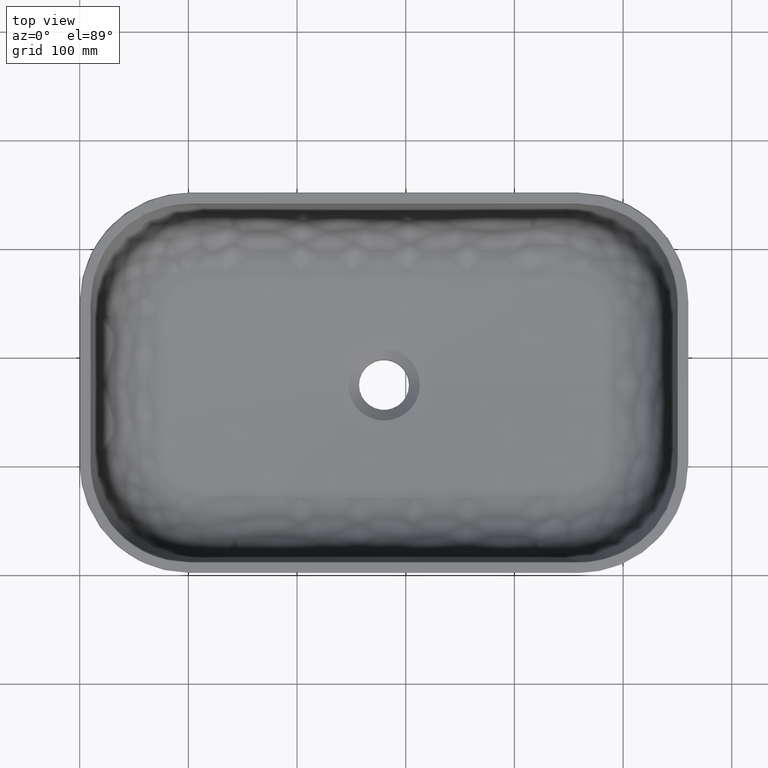
[diagram: clean part render]
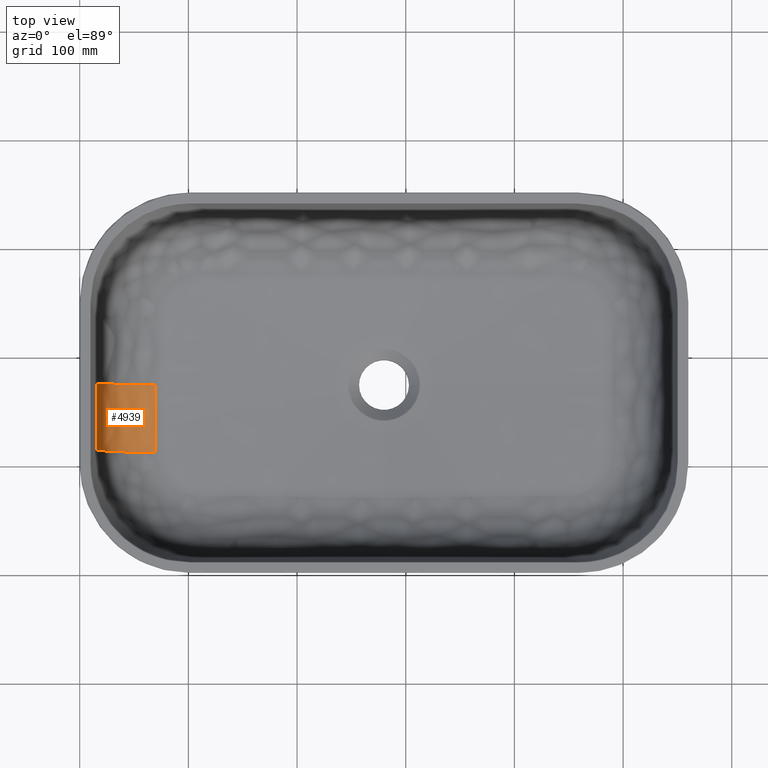
[diagram: same view with one face highlighted and labeled with its STEP entity id]
A machine part, top view. The second image highlights one B-rep face of the part: STEP entity #4939.
In plain terms, the highlighted face is a freeform B-spline surface patch.
Its self-contained STEP definition (entity closure, byte-faithful):
#25 = CARTESIAN_POINT ( 'NONE',  ( 15.23718647984850172, 113.9064782331549992, 82.73548189080469228 ) ) ;
#350 = EDGE_LOOP ( 'NONE', ( #2409, #2993, #2813, #4059 ) ) ;
#418 = CARTESIAN_POINT ( 'NONE',  ( 15.26199971537529976, 120.9015098490660023, 82.55892654602440928 ) ) ;
#508 = CARTESIAN_POINT ( 'NONE',  ( 15.34793004136510142, 175.0000000000000000, 81.94750050624180915 ) ) ;
#526 = EDGE_CURVE ( 'NONE', #4944, #2497, #659, .T. ) ;
#558 = CARTESIAN_POINT ( 'NONE',  ( 15.23718648091690042, 113.9064785343490058, 82.73548188320239660 ) ) ;
#574 = CARTESIAN_POINT ( 'NONE',  ( 69.64107231024848943, 112.4153381713429951, 31.31417020388090222 ) ) ;
#646 = CARTESIAN_POINT ( 'NONE',  ( 69.54779664741640488, 154.1466475399097078, 30.61382989231121954 ) ) ;
#659 = B_SPLINE_CURVE_WITH_KNOTS ( 'NONE', 3,
 ( #3133, #4762, #3933, #3908, #646, #1890, #4330, #957, #4731, #1839, #2646, #1814, #3569, #4434, #2330, #574 ),
 .UNSPECIFIED., .F., .F.,
 ( 4, 2, 2, 1, 1, 1, 1, 2, 2, 4 ),
 ( 0.0000000000000000000, 0.2499999999999771294, 0.3749999999999656941, 0.4374999999999593103, 0.4687499999999561462, 0.4843749999999545364, 0.4921874999999537592, 0.4960937499999533151, 0.4999999999999529265, 1.000000000000000000 ),
 .UNSPECIFIED. ) ;
#807 = CARTESIAN_POINT ( 'NONE',  ( 15.34793004136510142, 174.9999999999690203, 81.94750050624180915 ) ) ;
#957 = CARTESIAN_POINT ( 'NONE',  ( 69.55954991188299630, 145.9745424878787503, 30.69817718669120055 ) ) ;
#1090 = CARTESIAN_POINT ( 'NONE',  ( 15.23718648091690042, 113.9064785343490058, 82.73548188320239660 ) ) ;
#1154 = CARTESIAN_POINT ( 'NONE',  ( 15.34793004136510142, 175.0000000000000000, 81.94750050624180915 ) ) ;
#1216 = CARTESIAN_POINT ( 'NONE',  ( 69.53466960099980554, 175.0000000000000000, 30.52620467834089979 ) ) ;
#1286 = CARTESIAN_POINT ( 'NONE',  ( 15.23718648091690042, 113.9064785343490058, 82.73548188320239660 ) ) ;
#1296 =( BOUNDED_SURFACE ( )  B_SPLINE_SURFACE ( 2, 3, ( 
 ( #1216, #2159, #1628, #2908, #5079 ),
 ( #2958, #2543, #2490, #2131, #4226 ),
 ( #807, #4968, #3810, #418, #25 ) ),
 .UNSPECIFIED., .F., .F., .T. ) 
 B_SPLINE_SURFACE_WITH_KNOTS ( ( 3, 3 ),
 ( 4, 1, 4 ),
 ( 0.0000000000000000000, 83.17495397387089895 ),
 ( 3.818127161035650307E-11, 40.10844711807730079, 61.10039646845979888 ),
 .UNSPECIFIED. ) 
 GEOMETRIC_REPRESENTATION_ITEM ( )  RATIONAL_B_SPLINE_SURFACE ( (
 ( 1.000000000000000000, 1.000000000000000000, 1.000000000000000000, 1.000000000000000000, 1.000000000000000000),
 ( 0.7826081568524140275, 0.7826098197985700278, 0.7823330315936759538, 0.7817085713891590570, 0.7814623352291270031),
 ( 1.000000000000000000, 1.000000000000000000, 1.000000000000000000, 1.000000000000000000, 1.000000000000000000) ) ) 
 REPRESENTATION_ITEM ( '' )  SURFACE ( )  );
#1628 = CARTESIAN_POINT ( 'NONE',  ( 69.56185005931619969, 140.4045605193025779, 30.70423361308154853 ) ) ;
#1713 = CARTESIAN_POINT ( 'NONE',  ( 69.53466960099980554, 175.0000000000000000, 30.52620467834089979 ) ) ;
#1814 = CARTESIAN_POINT ( 'NONE',  ( 69.56321762270486886, 143.8447838729085504, 30.72438435458758477 ) ) ;
#1839 = CARTESIAN_POINT ( 'NONE',  ( 69.56249338865789866, 144.2545177104757954, 30.71922278363149417 ) ) ;
#1890 = CARTESIAN_POINT ( 'NONE',  ( 69.55303997811145678, 150.2270862035633172, 30.65137594923625031 ) ) ;
#2131 = CARTESIAN_POINT ( 'NONE',  ( 21.92218710939781445, 119.8077417239460232, 35.16923081739432178 ) ) ;
#2159 = CARTESIAN_POINT ( 'NONE',  ( 69.53439984613959268, 161.2898180420249901, 30.52585119676200165 ) ) ;
#2224 = CARTESIAN_POINT ( 'NONE',  ( 15.34793004136510142, 175.0000000000000000, 81.94750050624180915 ) ) ;
#2330 = CARTESIAN_POINT ( 'NONE',  ( 69.60894220374633790, 122.9536600851867689, 31.05391891012630978 ) ) ;
#2409 = ORIENTED_EDGE ( 'NONE', *, *, #2717, .F. ) ;
#2490 = CARTESIAN_POINT ( 'NONE',  ( 21.97057642128611121, 140.5507490226708853, 34.82492297292363759 ) ) ;
#2497 = VERTEX_POINT ( 'NONE', #3731 ) ;
#2543 = CARTESIAN_POINT ( 'NONE',  ( 21.99014761362772674, 161.3523539951098371, 34.68566670305802546 ) ) ;
#2624 = EDGE_CURVE ( 'NONE', #3204, #5424, #3622, .T. ) ;
#2629 = CARTESIAN_POINT ( 'NONE',  ( 15.29962234468299975, 134.8935453471989945, 82.29122762857220152 ) ) ;
#2646 = CARTESIAN_POINT ( 'NONE',  ( 69.56292715843717644, 144.0086841709576220, 30.72231483816595698 ) ) ;
#2717 = EDGE_CURVE ( 'NONE', #3204, #4944, #4367, .T. ) ;
#2813 = ORIENTED_EDGE ( 'NONE', *, *, #4200, .T. ) ;
#2908 = CARTESIAN_POINT ( 'NONE',  ( 69.61927393739691183, 119.5671612365810006, 31.13763071810659966 ) ) ;
#2958 = CARTESIAN_POINT ( 'NONE',  ( 21.99012702962548715, 174.9999999999999716, 34.68581316586192997 ) ) ;
#2993 = ORIENTED_EDGE ( 'NONE', *, *, #2624, .T. ) ;
#3133 = CARTESIAN_POINT ( 'NONE',  ( 69.53466960099980554, 175.0000000000000000, 30.52620467834089979 ) ) ;
#3204 = VERTEX_POINT ( 'NONE', #1154 ) ;
#3374 = FACE_OUTER_BOUND ( 'NONE', #350, .T. ) ;
#3515 = CARTESIAN_POINT ( 'NONE',  ( 21.99012702962548005, 175.0000000000160583, 34.68581316586192997 ) ) ;
#3569 = CARTESIAN_POINT ( 'NONE',  ( 69.56336561520504347, 143.7616432197366407, 30.72543826281995649 ) ) ;
#3622 = B_SPLINE_CURVE_WITH_KNOTS ( 'NONE', 3,
 ( #508, #5219, #4717, #2629, #5141, #3945, #558 ),
 .UNSPECIFIED., .F., .F.,
 ( 4, 3, 4 ),
 ( 3.822009375653579546E-11, 40.10844711807740026, 61.10039646845979888 ),
 .UNSPECIFIED. ) ;
#3731 = CARTESIAN_POINT ( 'NONE',  ( 69.64107231024848943, 112.4153381713429951, 31.31417020388090222 ) ) ;
#3810 = CARTESIAN_POINT ( 'NONE',  ( 15.32290970627104976, 141.2637517807885956, 82.12552944101389585 ) ) ;
#3908 = CARTESIAN_POINT ( 'NONE',  ( 69.54483859854069294, 156.7557983291173400, 30.59297031447094994 ) ) ;
#3933 = CARTESIAN_POINT ( 'NONE',  ( 69.53751103518034427, 164.5775532407388653, 30.54290496127937615 ) ) ;
#3945 = CARTESIAN_POINT ( 'NONE',  ( 15.26199971632139984, 120.9015101157719982, 82.55892653929269898 ) ) ;
#4059 = ORIENTED_EDGE ( 'NONE', *, *, #526, .F. ) ;
#4200 = EDGE_CURVE ( 'NONE', #5424, #2497, #5001, .T. ) ;
#4226 = CARTESIAN_POINT ( 'NONE',  ( 21.90231557080181091, 112.6856775350949817, 35.31060931452370255 ) ) ;
#4322 = CARTESIAN_POINT ( 'NONE',  ( 69.53466960099980554, 175.0000000000000000, 30.52620467834089979 ) ) ;
#4330 = CARTESIAN_POINT ( 'NONE',  ( 69.55586554423659607, 148.2658476592948773, 30.67171315023989919 ) ) ;
#4367 =( BOUNDED_CURVE ( )  B_SPLINE_CURVE ( 2, ( #2224, #3515, #4322 ),
 .UNSPECIFIED., .F., .T. ) 
 B_SPLINE_CURVE_WITH_KNOTS ( ( 3, 3 ),
 ( 0.0000000000000000000, 83.17495397387089895 ),
 .UNSPECIFIED. ) 
 CURVE ( )  GEOMETRIC_REPRESENTATION_ITEM ( )  RATIONAL_B_SPLINE_CURVE ( ( 1.000000000000000000, 0.7826081568524140275, 1.000000000000000000 ) ) 
 REPRESENTATION_ITEM ( '' )  );
#4434 = CARTESIAN_POINT ( 'NONE',  ( 69.58199363354316347, 133.3414604011528297, 30.85802811187333816 ) ) ;
#4580 = CARTESIAN_POINT ( 'NONE',  ( 21.90231557121954964, 112.6856776848168664, 35.31060931155160176 ) ) ;
#4603 = CARTESIAN_POINT ( 'NONE',  ( 69.64107231024848943, 112.4153381713429951, 31.31417020388090222 ) ) ;
#4717 = CARTESIAN_POINT ( 'NONE',  ( 15.33152288256140139, 148.2610558310919942, 82.06424350722409145 ) ) ;
#4731 = CARTESIAN_POINT ( 'NONE',  ( 69.56149464446876607, 144.8280121802084750, 30.71209353040359247 ) ) ;
#4762 = CARTESIAN_POINT ( 'NONE',  ( 69.53457944170246208, 169.7844422864853016, 30.52621256625731760 ) ) ;
#4939 = ADVANCED_FACE ( 'NONE', ( #3374 ), #1296, .T. ) ;
#4944 = VERTEX_POINT ( 'NONE', #1713 ) ;
#4968 = CARTESIAN_POINT ( 'NONE',  ( 15.34797971996249899, 161.6305141282360012, 81.94714702465390133 ) ) ;
#5001 =( BOUNDED_CURVE ( )  B_SPLINE_CURVE ( 2, ( #1286, #4580, #4603 ),
 .UNSPECIFIED., .F., .T. ) 
 B_SPLINE_CURVE_WITH_KNOTS ( ( 3, 3 ),
 ( 0.0000000000000000000, 1.000000000000000000 ),
 .UNSPECIFIED. ) 
 CURVE ( )  GEOMETRIC_REPRESENTATION_ITEM ( )  RATIONAL_B_SPLINE_CURVE ( ( 1.000000000000000000, 0.7814623352343018636, 1.000000000000000000 ) ) 
 REPRESENTATION_ITEM ( '' )  );
#5079 = CARTESIAN_POINT ( 'NONE',  ( 69.64107364012319579, 112.4153385669990115, 31.31418606288820072 ) ) ;
#5141 = CARTESIAN_POINT ( 'NONE',  ( 15.28292624888490003, 127.8972609437480088, 82.41002652309579446 ) ) ;
#5219 = CARTESIAN_POINT ( 'NONE',  ( 15.34797972019629952, 161.6305141941610373, 81.94714702299049236 ) ) ;
#5424 = VERTEX_POINT ( 'NONE', #1090 ) ;